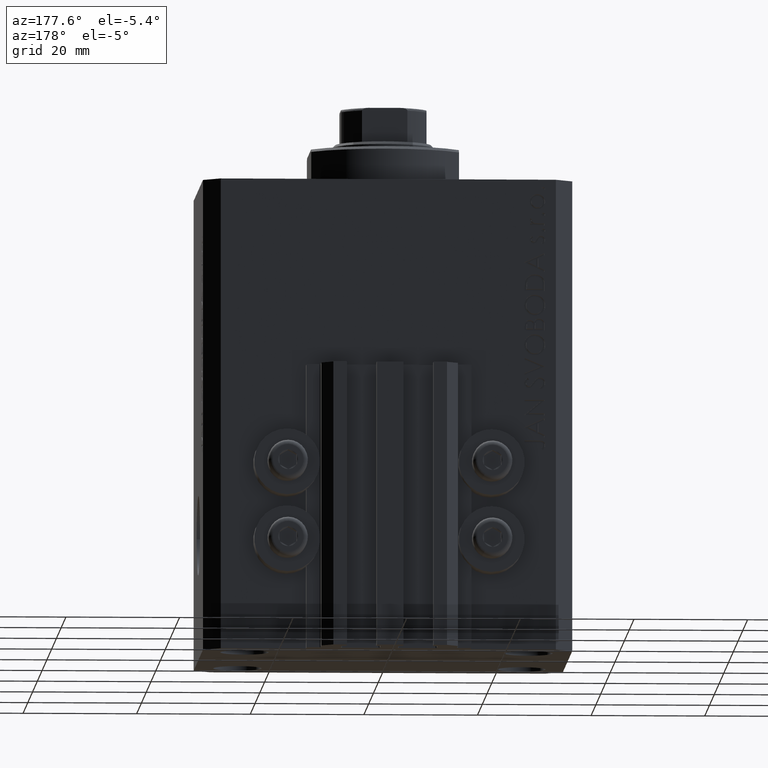
[diagram: clean part render]
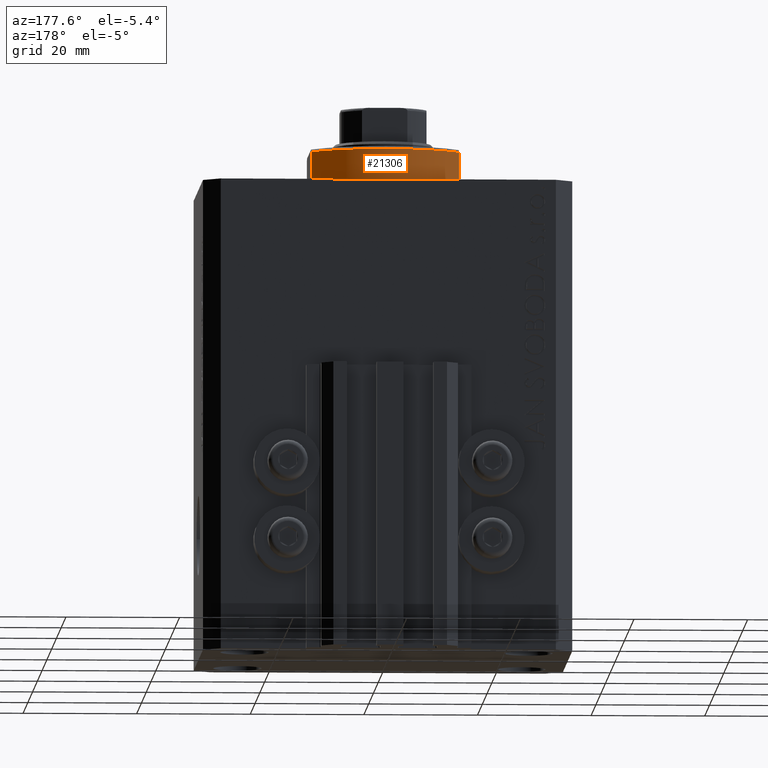
[diagram: same view with one face highlighted and labeled with its STEP entity id]
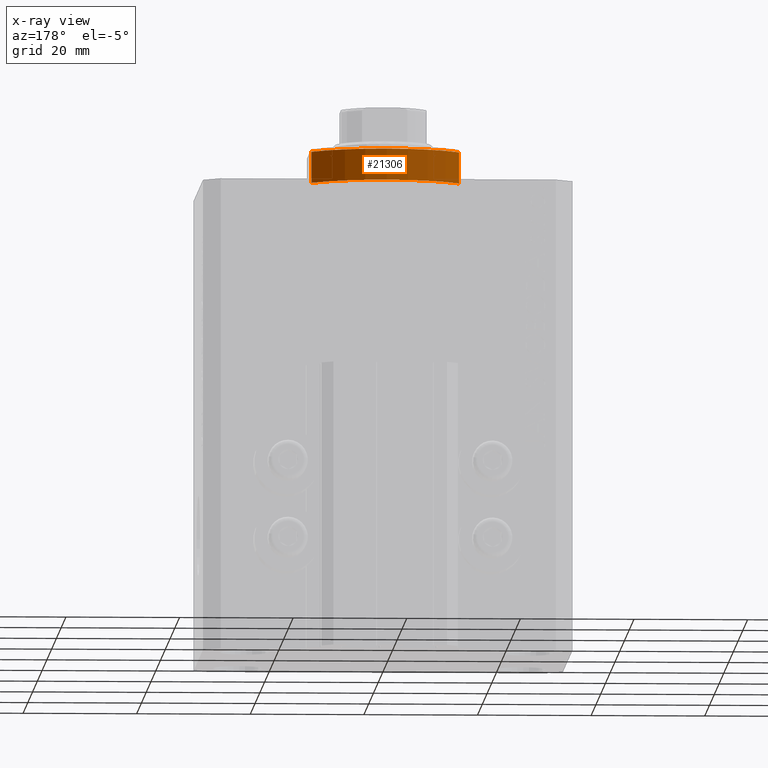
[diagram: x-ray of the same camera — body ghosted, the highlighted face saturated]
A machine part, auxiliary view. The second image highlights one B-rep face of the part: STEP entity #21306.
The next image is the same camera in x-ray: the body ghosted, the highlighted face saturated — about 0% of this face is hidden behind the body in this view.
In plain terms, the highlighted cylindrical surface (partial cylindrical patch) has radius 16 mm, axis along (0, 0, -1).
Its self-contained STEP definition (entity closure, byte-faithful):
#237 = LINE ( 'NONE', #7181, #23666 ) ;
#1400 = DIRECTION ( 'NONE',  ( -1.000000000000000000, 0.000000000000000000, 0.000000000000000000 ) ) ;
#3118 = DIRECTION ( 'NONE',  ( 1.000000000000000000, -8.881784197001252323E-16, 0.000000000000000000 ) ) ;
#4688 = EDGE_CURVE ( 'NONE', #23986, #29097, #237, .T. ) ;
#4978 = ORIENTED_EDGE ( 'NONE', *, *, #4688, .T. ) ;
#7181 = CARTESIAN_POINT ( 'NONE',  ( -13.00000000000000000, 9.327379053088813876, -6.500000000000000000 ) ) ;
#8866 = CIRCLE ( 'NONE', #40074, 16.00000000000000000 ) ;
#9857 = EDGE_LOOP ( 'NONE', ( #12112, #12816, #4978, #28173 ) ) ;
#12112 = ORIENTED_EDGE ( 'NONE', *, *, #27966, .F. ) ;
#12730 = VERTEX_POINT ( 'NONE', #37623 ) ;
#12816 = ORIENTED_EDGE ( 'NONE', *, *, #19543, .T. ) ;
#12995 = CARTESIAN_POINT ( 'NONE',  ( -13.00000000000000000, 9.327379053088916905, -6.000000000000014211 ) ) ;
#14906 = VERTEX_POINT ( 'NONE', #37400 ) ;
#18490 = DIRECTION ( 'NONE',  ( 1.000000000000000000, 0.000000000000000000, 0.000000000000000000 ) ) ;
#19543 = EDGE_CURVE ( 'NONE', #14906, #23986, #8866, .T. ) ;
#21306 = ADVANCED_FACE ( 'NONE', ( #30524 ), #43312, .T. ) ;
#21467 = CARTESIAN_POINT ( 'NONE',  ( 13.00000000000000000, 9.327379053088813876, -6.500000000000000000 ) ) ;
#22411 = CARTESIAN_POINT ( 'NONE',  ( 0.000000000000000000, 0.000000000000000000, -6.000000000000023981 ) ) ;
#23666 = VECTOR ( 'NONE', #33642, 1000.000000000000000 ) ;
#23986 = VERTEX_POINT ( 'NONE', #12995 ) ;
#25062 = AXIS2_PLACEMENT_3D ( 'NONE', #32346, #29010, #18490 ) ;
#25295 = DIRECTION ( 'NONE',  ( -0.000000000000000000, -0.000000000000000000, 1.000000000000000000 ) ) ;
#25770 = LINE ( 'NONE', #21467, #34016 ) ;
#25921 = CIRCLE ( 'NONE', #35811, 16.00000000000000000 ) ;
#26940 = DIRECTION ( 'NONE',  ( 0.000000000000000000, 0.000000000000000000, 1.000000000000000000 ) ) ;
#27966 = EDGE_CURVE ( 'NONE', #14906, #12730, #25770, .T. ) ;
#28173 = ORIENTED_EDGE ( 'NONE', *, *, #40854, .T. ) ;
#29010 = DIRECTION ( 'NONE',  ( -0.000000000000000000, -0.000000000000000000, 1.000000000000000000 ) ) ;
#29097 = VERTEX_POINT ( 'NONE', #44612 ) ;
#30524 = FACE_OUTER_BOUND ( 'NONE', #9857, .T. ) ;
#32346 = CARTESIAN_POINT ( 'NONE',  ( 0.000000000000000000, 0.000000000000000000, -6.500000000000000000 ) ) ;
#33642 = DIRECTION ( 'NONE',  ( -0.000000000000000000, -0.000000000000000000, 1.000000000000000000 ) ) ;
#34016 = VECTOR ( 'NONE', #25295, 1000.000000000000000 ) ;
#35811 = AXIS2_PLACEMENT_3D ( 'NONE', #45847, #42726, #3118 ) ;
#37400 = CARTESIAN_POINT ( 'NONE',  ( 13.00000000000000000, 9.327379053088916905, -6.000000000000014211 ) ) ;
#37623 = CARTESIAN_POINT ( 'NONE',  ( 13.00000000000000000, 9.327379053088815652, -0.4999999999999995559 ) ) ;
#40074 = AXIS2_PLACEMENT_3D ( 'NONE', #22411, #26940, #1400 ) ;
#40854 = EDGE_CURVE ( 'NONE', #29097, #12730, #25921, .T. ) ;
#42726 = DIRECTION ( 'NONE',  ( -0.000000000000000000, -0.000000000000000000, -1.000000000000000000 ) ) ;
#43312 = CYLINDRICAL_SURFACE ( 'NONE', #25062, 16.00000000000000000 ) ;
#44612 = CARTESIAN_POINT ( 'NONE',  ( -13.00000000000000000, 9.327379053088815652, -0.4999999999999995559 ) ) ;
#45847 = CARTESIAN_POINT ( 'NONE',  ( 0.000000000000000000, 0.000000000000000000, -0.4999999999999995559 ) ) ;